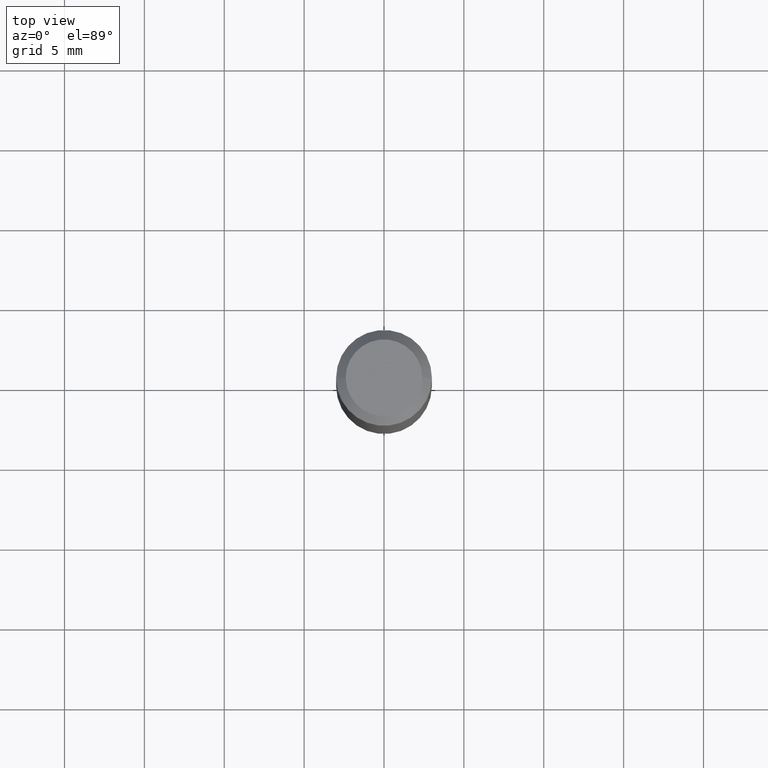
[diagram: clean part render]
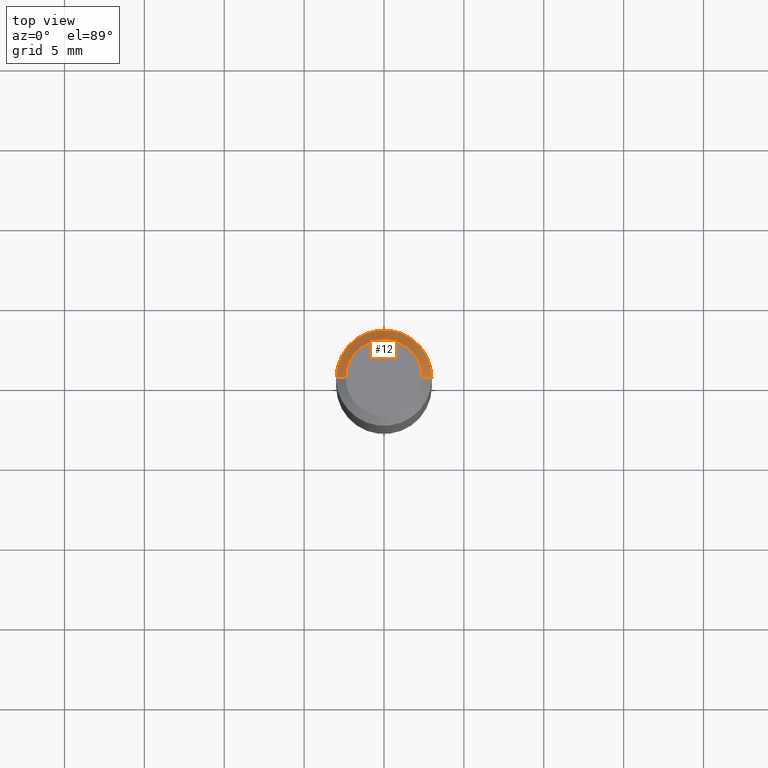
[diagram: same view with one face highlighted and labeled with its STEP entity id]
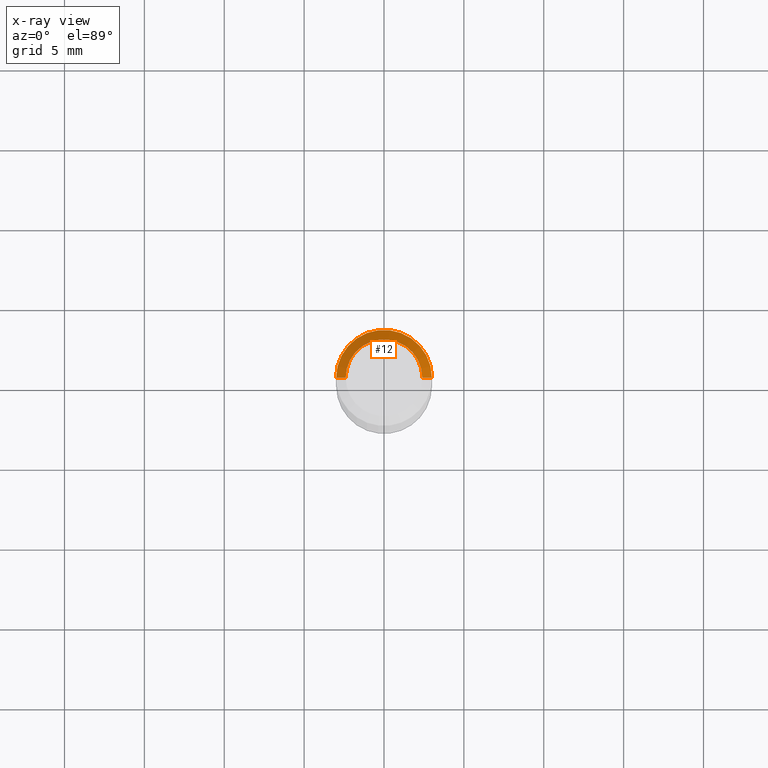
[diagram: x-ray of the same camera — body ghosted, the highlighted face saturated]
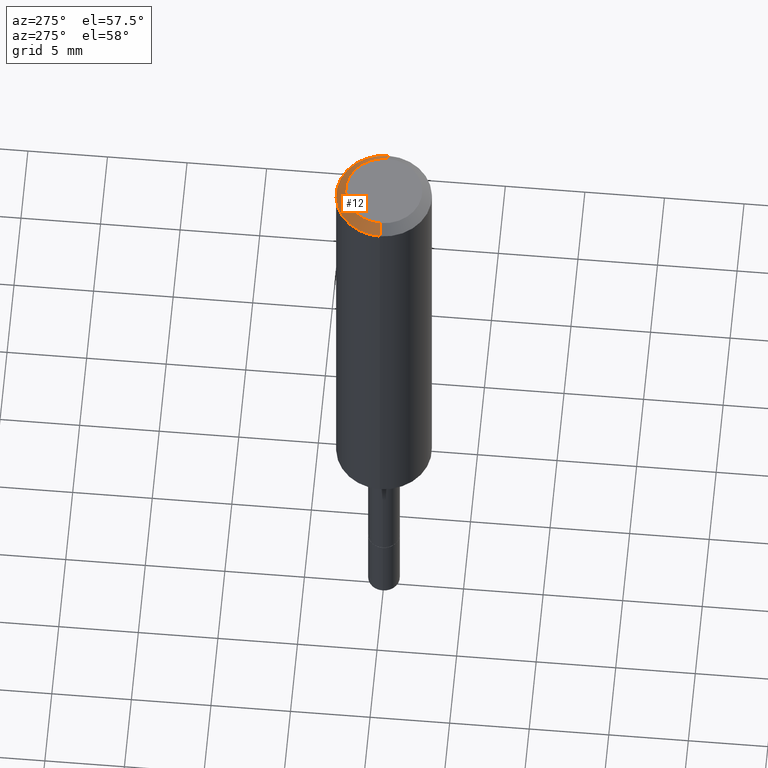
[diagram: same view with one face highlighted and labeled with its STEP entity id]
A machine part, top view. The second image highlights one B-rep face of the part: STEP entity #12.
The next image is the same camera in x-ray: the body ghosted, the highlighted face saturated — about 0% of this face is hidden behind the body in this view.
A second angle (auxiliary view) of the same face is appended — the face is thin or edge-on in the first view.
In plain terms, the highlighted conical surface has half-angle 45 deg.
Its self-contained STEP definition (entity closure, byte-faithful):
#12 = ADVANCED_FACE ( 'NONE', ( #417 ), #59, .T. ) ;
#13 = AXIS2_PLACEMENT_3D ( 'NONE', #129, #50, #367 ) ;
#19 = CARTESIAN_POINT ( 'NONE',  ( -0.1180999999999999966, 7.422191030112725094E-16, -0.02362000000000013741 ) ) ;
#40 = VERTEX_POINT ( 'NONE', #482 ) ;
#41 = CARTESIAN_POINT ( 'NONE',  ( 0.1180999999999999966, -8.926936027602933910E-16, -0.02362000000000013741 ) ) ;
#50 = DIRECTION ( 'NONE',  ( 2.445468806185136597E-29, -3.491481338843145583E-15, -1.000000000000000000 ) ) ;
#59 = CONICAL_SURFACE ( 'NONE', #13, 0.1180999999999999966, 0.7853981633974463916 ) ;
#62 = DIRECTION ( 'NONE',  ( -0.7071067811865461294, 2.468850131082242072E-15, -0.7071067811865489050 ) ) ;
#78 = CARTESIAN_POINT ( 'NONE',  ( 0.1180999999999999966, -9.071566814582237199E-16, -0.02362000000000013741 ) ) ;
#114 = EDGE_CURVE ( 'NONE', #411, #514, #163, .T. ) ;
#129 = CARTESIAN_POINT ( 'NONE',  ( 5.776197320209326656E-31, -8.246878922347558061E-17, -0.02362000000000013741 ) ) ;
#136 = VERTEX_POINT ( 'NONE', #449 ) ;
#153 = EDGE_CURVE ( 'NONE', #40, #411, #409, .T. ) ;
#163 = CIRCLE ( 'NONE', #322, 0.1180999999999999966 ) ;
#166 = EDGE_CURVE ( 'NONE', #136, #514, #396, .T. ) ;
#172 = CARTESIAN_POINT ( 'NONE',  ( 5.776197320209326656E-31, -8.246878922347558061E-17, -0.02362000000000013741 ) ) ;
#190 = AXIS2_PLACEMENT_3D ( 'NONE', #195, #342, #258 ) ;
#195 = CARTESIAN_POINT ( 'NONE',  ( 7.545787641473140628E-46, -1.077338491108201769E-31, -3.085620075131671975E-17 ) ) ;
#258 = DIRECTION ( 'NONE',  ( 1.000000000000000000, -6.982962677686267499E-15, 4.875432709231658792E-29 ) ) ;
#267 = ORIENTED_EDGE ( 'NONE', *, *, #114, .T. ) ;
#274 = EDGE_LOOP ( 'NONE', ( #335, #398, #267, #310 ) ) ;
#286 = DIRECTION ( 'NONE',  ( 1.000000000000000000, -6.982962677686266711E-15, 0.000000000000000000 ) ) ;
#310 = ORIENTED_EDGE ( 'NONE', *, *, #166, .F. ) ;
#322 = AXIS2_PLACEMENT_3D ( 'NONE', #172, #461, #286 ) ;
#327 = DIRECTION ( 'NONE',  ( 0.7071067811865461294, -7.319954787623251312E-15, -0.7071067811865489050 ) ) ;
#335 = ORIENTED_EDGE ( 'NONE', *, *, #338, .F. ) ;
#338 = EDGE_CURVE ( 'NONE', #40, #136, #405, .T. ) ;
#341 = CARTESIAN_POINT ( 'NONE',  ( -0.1180999999999999966, -1.268021588944702067E-15, -0.02362000000000013741 ) ) ;
#342 = DIRECTION ( 'NONE',  ( -2.445468806185136597E-29, 3.491481338843145583E-15, 1.000000000000000000 ) ) ;
#367 = DIRECTION ( 'NONE',  ( -1.000000000000000000, 6.982962677686266711E-15, 0.000000000000000000 ) ) ;
#396 = LINE ( 'NONE', #19, #443 ) ;
#398 = ORIENTED_EDGE ( 'NONE', *, *, #153, .T. ) ;
#405 = CIRCLE ( 'NONE', #190, 0.09447999999999998066 ) ;
#409 = LINE ( 'NONE', #41, #455 ) ;
#411 = VERTEX_POINT ( 'NONE', #78 ) ;
#417 = FACE_OUTER_BOUND ( 'NONE', #274, .T. ) ;
#443 = VECTOR ( 'NONE', #62, 39.37007874015748143 ) ;
#449 = CARTESIAN_POINT ( 'NONE',  ( -0.09447999999999998066, 7.009847083995354710E-16, -3.085620075132147757E-17 ) ) ;
#455 = VECTOR ( 'NONE', #327, 39.37007874015748143 ) ;
#461 = DIRECTION ( 'NONE',  ( -2.445468806185136597E-29, 3.491481338843145583E-15, 1.000000000000000000 ) ) ;
#482 = CARTESIAN_POINT ( 'NONE',  ( 0.09447999999999998066, -7.704367267948738690E-16, -3.085620075131172158E-17 ) ) ;
#514 = VERTEX_POINT ( 'NONE', #341 ) ;